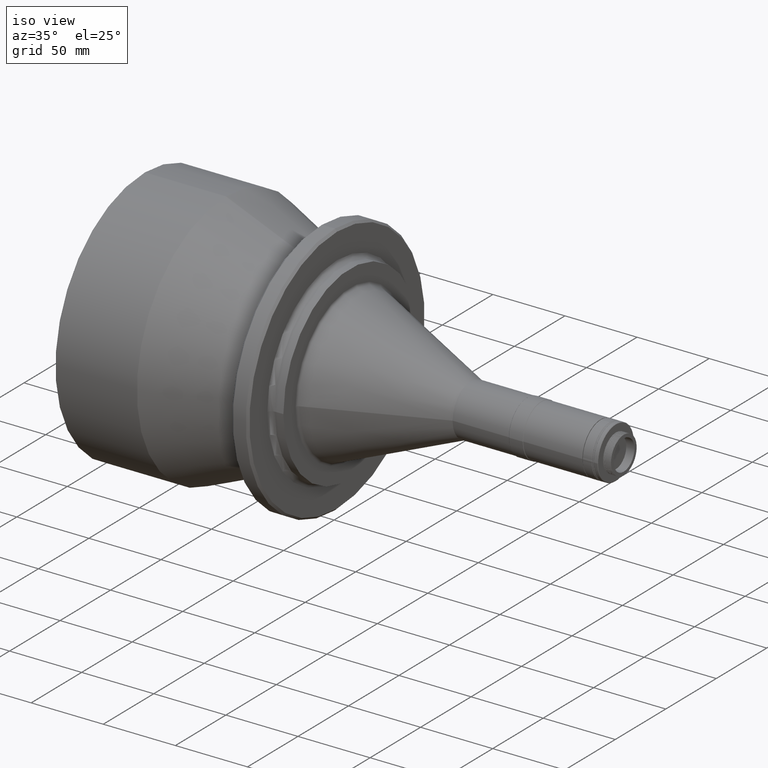
[diagram: clean part render]
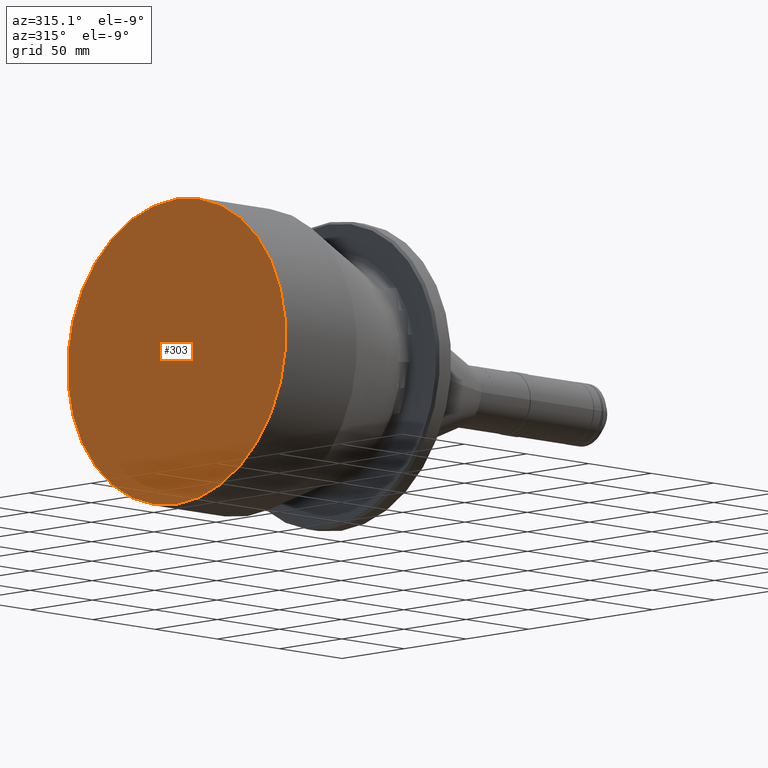
[diagram: tour spotlight — one face highlighted and labeled with its STEP entity id]
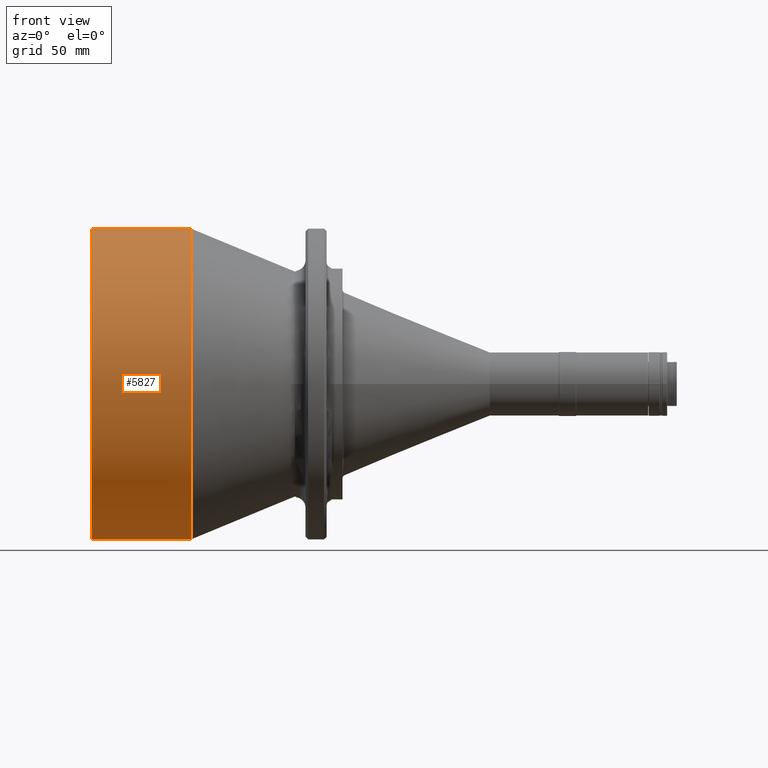
[diagram: tour spotlight — one face highlighted and labeled with its STEP entity id]
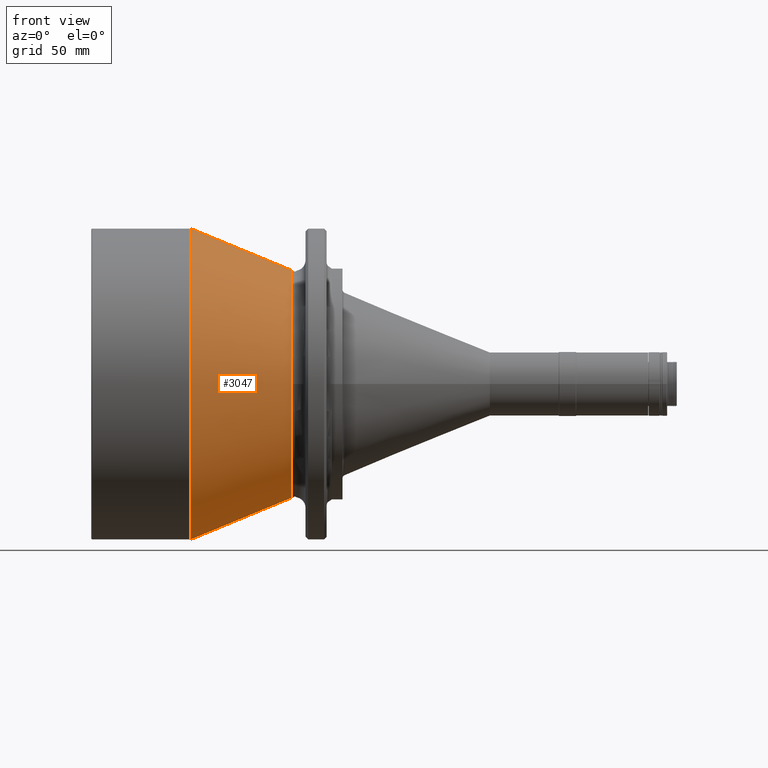
[diagram: tour spotlight — one face highlighted and labeled with its STEP entity id]
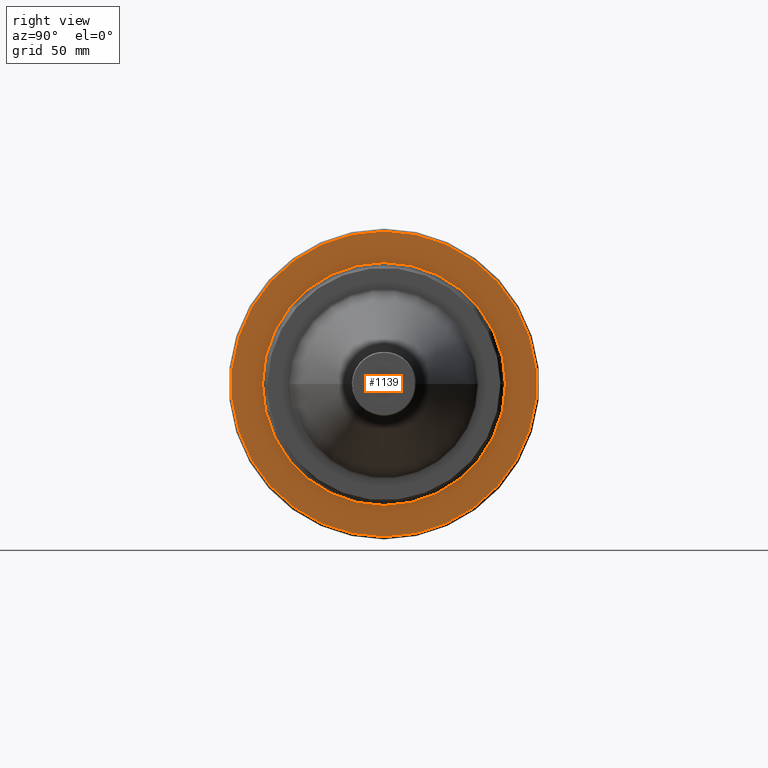
[diagram: tour spotlight — one face highlighted and labeled with its STEP entity id]
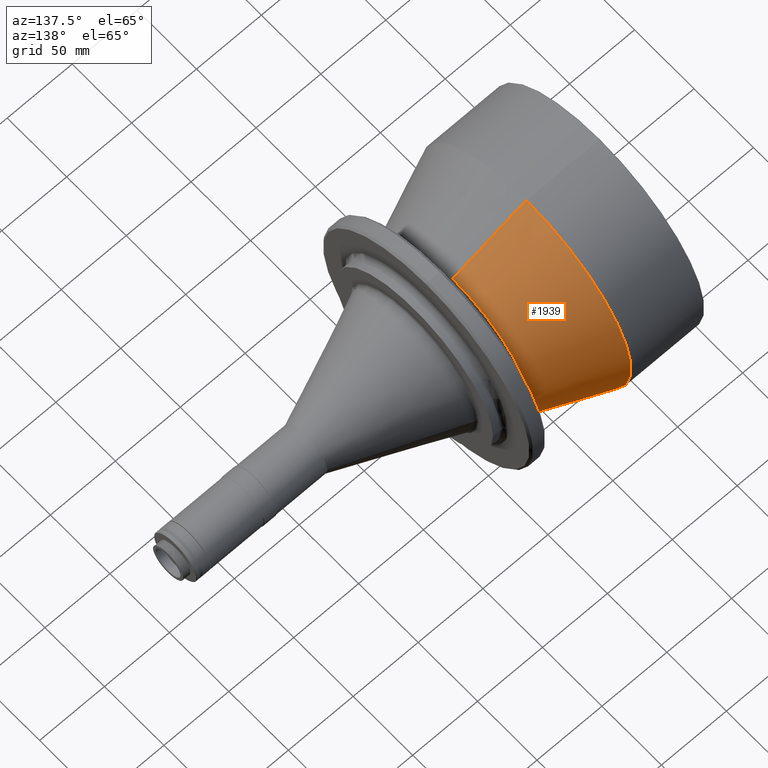
[diagram: tour spotlight — one face highlighted and labeled with its STEP entity id]
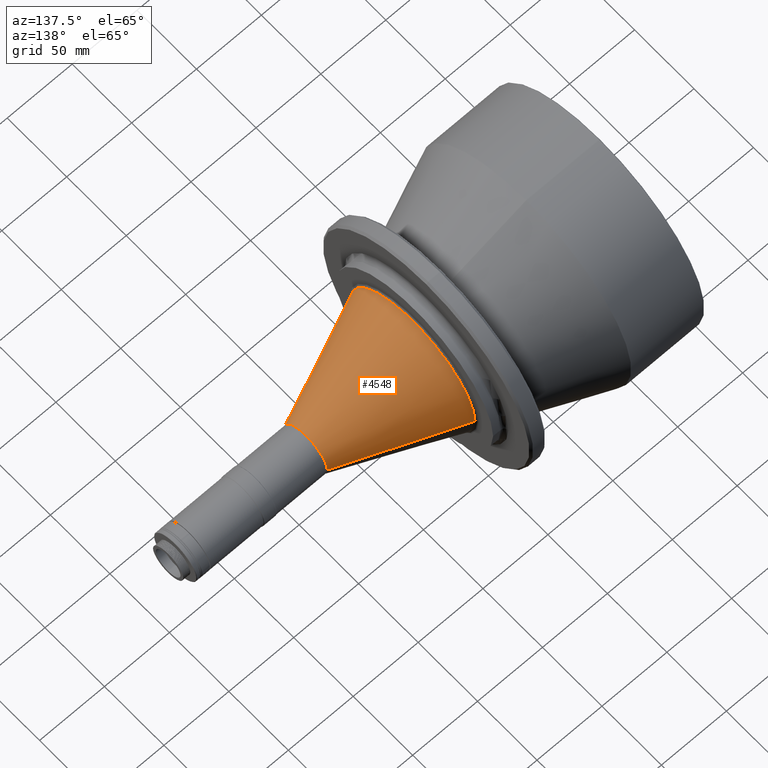
[diagram: tour spotlight — one face highlighted and labeled with its STEP entity id]
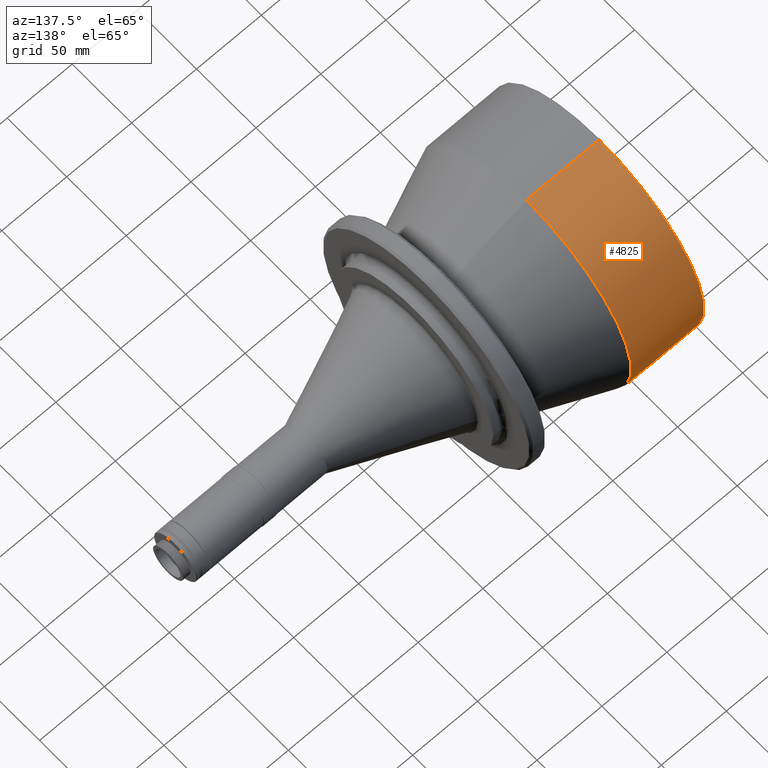
[diagram: tour spotlight — one face highlighted and labeled with its STEP entity id]
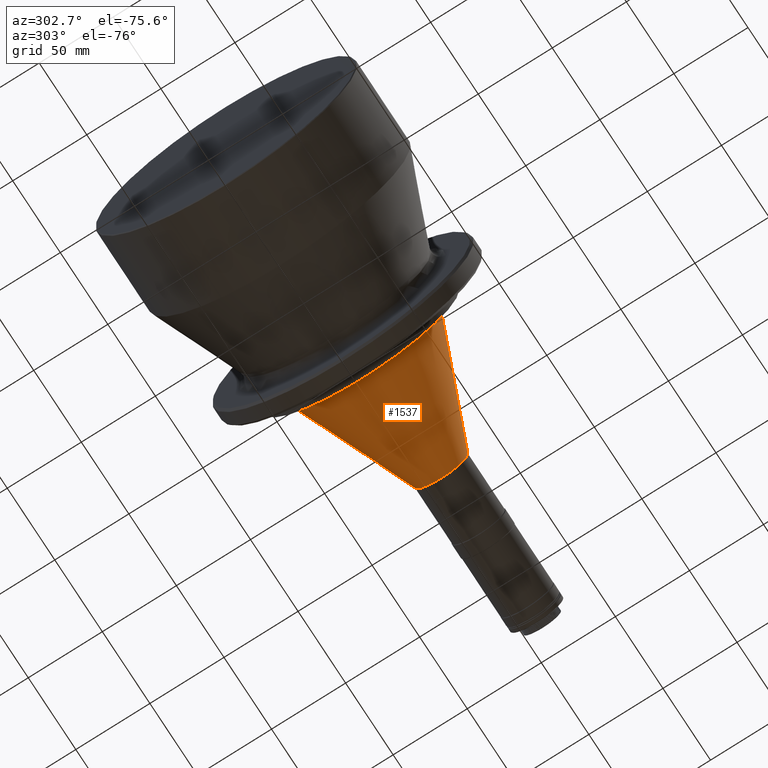
[diagram: tour spotlight — one face highlighted and labeled with its STEP entity id]
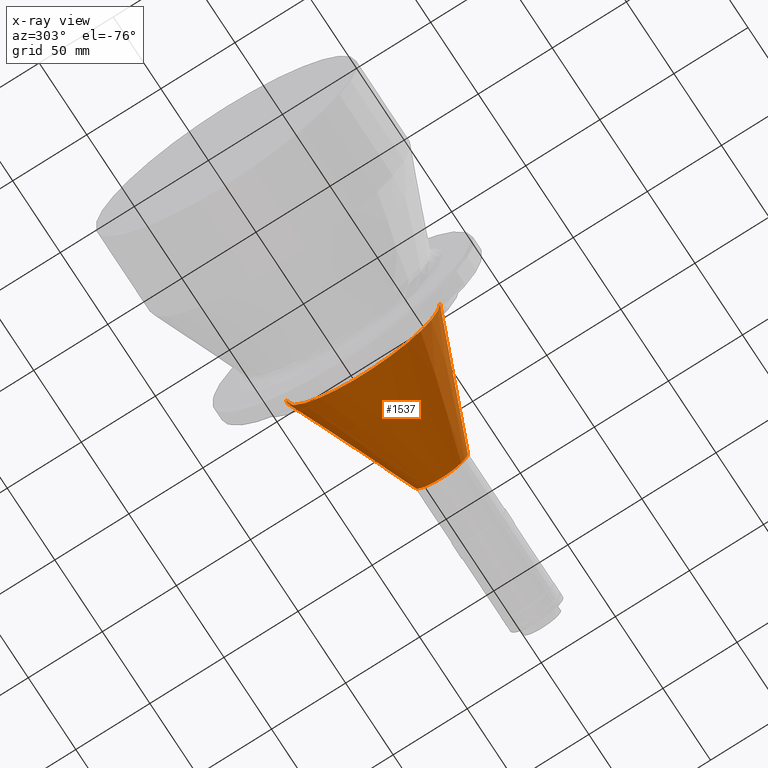
[diagram: x-ray of the same camera — body ghosted, this tour face saturated]
A machine part: a face-by-face anatomy tour. The part has 242 B-rep faces; the first image is the clean iso view, then the 8 largest visible faces are spotlighted one at a time (largest first), each with its STEP entity span.

Face 1 — auxiliary view, entity #303. In plain terms, the highlighted planar face has unit normal (-1, 0, 0).
Definition (entity closure, byte-faithful):
#59 = EDGE_LOOP ( 'NONE', ( #4142, #6047 ) ) ;
#303 = ADVANCED_FACE ( 'NONE', ( #1590 ), #4140, .T. ) ;
#370 = EDGE_CURVE ( 'NONE', #5584, #4749, #954, .T. ) ;
#700 = DIRECTION ( 'NONE',  ( -1.000000000000000000, 8.492394904561674800E-017, 0.0000000000000000000 ) ) ;
#954 = CIRCLE ( 'NONE', #1072, 87.74999999925017800 ) ;
#956 = DIRECTION ( 'NONE',  ( 0.0000000000000000000, 0.0000000000000000000, -1.000000000000000000 ) ) ;
#980 = EDGE_CURVE ( 'NONE', #4749, #5584, #1372, .T. ) ;
#1072 = AXIS2_PLACEMENT_3D ( 'NONE', #6606, #1474, #1450 ) ;
#1372 = CIRCLE ( 'NONE', #2708, 87.74999999925017800 ) ;
#1450 = DIRECTION ( 'NONE',  ( 0.0000000000000000000, 0.0000000000000000000, -1.000000000000000000 ) ) ;
#1474 = DIRECTION ( 'NONE',  ( 1.000000000000000000, 0.0000000000000000000, 0.0000000000000000000 ) ) ;
#1590 = FACE_OUTER_BOUND ( 'NONE', #59, .T. ) ;
#2708 = AXIS2_PLACEMENT_3D ( 'NONE', #3323, #6833, #956 ) ;
#3181 = CARTESIAN_POINT ( 'NONE',  ( 18.29891171507773300, 1.077689183242704600E-014, 19.52684612745017700 ) ) ;
#3323 = CARTESIAN_POINT ( 'NONE',  ( 18.29891171507773300, 0.0000000000000000000, -68.22315387180000800 ) ) ;
#4140 = PLANE ( 'NONE',  #7184 ) ;
#4142 = ORIENTED_EDGE ( 'NONE', *, *, #980, .F. ) ;
#4749 = VERTEX_POINT ( 'NONE', #6596 ) ;
#4761 = DIRECTION ( 'NONE',  ( -8.492394904561674800E-017, -1.000000000000000000, 0.0000000000000000000 ) ) ;
#4810 = CARTESIAN_POINT ( 'NONE',  ( 18.29891171507772900, 2.775557561562891400E-014, -68.22315000000000400 ) ) ;
#5584 = VERTEX_POINT ( 'NONE', #3181 ) ;
#6047 = ORIENTED_EDGE ( 'NONE', *, *, #370, .F. ) ;
#6596 = CARTESIAN_POINT ( 'NONE',  ( 18.29891171507773300, 0.0000000000000000000, -155.9731538710501900 ) ) ;
#6606 = CARTESIAN_POINT ( 'NONE',  ( 18.29891171507773300, 0.0000000000000000000, -68.22315387180000800 ) ) ;
#6833 = DIRECTION ( 'NONE',  ( 1.000000000000000000, 0.0000000000000000000, 0.0000000000000000000 ) ) ;
#7184 = AXIS2_PLACEMENT_3D ( 'NONE', #4810, #700, #4761 ) ;

Face 2 — front view, entity #5827. In plain terms, the highlighted cylindrical surface (partial cylindrical patch) has radius 88.25 mm, axis along (1, 0, 0).
Definition (entity closure, byte-faithful):
#4 = VERTEX_POINT ( 'NONE', #1933 ) ;
#11 = ORIENTED_EDGE ( 'NONE', *, *, #7429, .F. ) ;
#727 = AXIS2_PLACEMENT_3D ( 'NONE', #4299, #796, #3212 ) ;
#789 = LINE ( 'NONE', #1778, #5600 ) ;
#796 = DIRECTION ( 'NONE',  ( 1.000000000000000000, 0.0000000000000000000, 0.0000000000000000000 ) ) ;
#868 = CARTESIAN_POINT ( 'NONE',  ( 75.03891171589822300, 0.0000000000000000000, -68.22315387180000800 ) ) ;
#965 = DIRECTION ( 'NONE',  ( 1.000000000000000000, 0.0000000000000000000, 0.0000000000000000000 ) ) ;
#1287 = DIRECTION ( 'NONE',  ( 1.000000000000000000, 0.0000000000000000000, 0.0000000000000000000 ) ) ;
#1454 = DIRECTION ( 'NONE',  ( 1.000000000000000000, 0.0000000000000000000, 0.0000000000000000000 ) ) ;
#1488 = ORIENTED_EDGE ( 'NONE', *, *, #1660, .T. ) ;
#1660 = EDGE_CURVE ( 'NONE', #4, #2339, #7110, .T. ) ;
#1778 = CARTESIAN_POINT ( 'NONE',  ( 18.79891171590005100, 1.080750800248029100E-014, 20.02684612824000300 ) ) ;
#1933 = CARTESIAN_POINT ( 'NONE',  ( 18.79891171546457700, 0.0000000000000000000, -156.4731538714121400 ) ) ;
#2013 = CARTESIAN_POINT ( 'NONE',  ( 75.03891171589822300, 0.0000000000000000000, -156.4731538718400300 ) ) ;
#2041 = CARTESIAN_POINT ( 'NONE',  ( 75.03891171589822300, 1.080750800248029100E-014, 20.02684612824000300 ) ) ;
#2328 = ORIENTED_EDGE ( 'NONE', *, *, #3791, .F. ) ;
#2339 = VERTEX_POINT ( 'NONE', #2013 ) ;
#2395 = ORIENTED_EDGE ( 'NONE', *, *, #2758, .T. ) ;
#2445 = VERTEX_POINT ( 'NONE', #7424 ) ;
#2758 = EDGE_CURVE ( 'NONE', #2445, #4, #5355, .T. ) ;
#3210 = EDGE_LOOP ( 'NONE', ( #11, #2395, #1488, #2328 ) ) ;
#3212 = DIRECTION ( 'NONE',  ( 0.0000000000000000000, 0.0000000000000000000, -1.000000000000000000 ) ) ;
#3791 = EDGE_CURVE ( 'NONE', #5900, #2339, #6959, .T. ) ;
#4073 = CYLINDRICAL_SURFACE ( 'NONE', #7426, 88.25000000004001800 ) ;
#4132 = DIRECTION ( 'NONE',  ( 1.000000000000000000, 0.0000000000000000000, 0.0000000000000000000 ) ) ;
#4191 = AXIS2_PLACEMENT_3D ( 'NONE', #868, #965, #6744 ) ;
#4259 = FACE_OUTER_BOUND ( 'NONE', #3210, .T. ) ;
#4299 = CARTESIAN_POINT ( 'NONE',  ( 18.79891171546457700, 0.0000000000000000000, -68.22315387180000800 ) ) ;
#4427 = DIRECTION ( 'NONE',  ( 0.0000000000000000000, 0.0000000000000000000, -1.000000000000000000 ) ) ;
#4651 = VECTOR ( 'NONE', #1287, 1000.000000000000000 ) ;
#4852 = CARTESIAN_POINT ( 'NONE',  ( 18.79891171590005100, 0.0000000000000000000, -156.4731538718400300 ) ) ;
#5355 = CIRCLE ( 'NONE', #727, 88.24999999961214300 ) ;
#5600 = VECTOR ( 'NONE', #4132, 1000.000000000000000 ) ;
#5827 = ADVANCED_FACE ( 'NONE', ( #4259 ), #4073, .T. ) ;
#5900 = VERTEX_POINT ( 'NONE', #2041 ) ;
#6096 = CARTESIAN_POINT ( 'NONE',  ( 18.79891171590005100, 0.0000000000000000000, -68.22315387180000800 ) ) ;
#6744 = DIRECTION ( 'NONE',  ( 0.0000000000000000000, 0.0000000000000000000, 1.000000000000000000 ) ) ;
#6959 = CIRCLE ( 'NONE', #4191, 88.25000000004000400 ) ;
#7110 = LINE ( 'NONE', #4852, #4651 ) ;
#7424 = CARTESIAN_POINT ( 'NONE',  ( 18.79891171546457700, 1.080750800242789200E-014, 20.02684612781213500 ) ) ;
#7426 = AXIS2_PLACEMENT_3D ( 'NONE', #6096, #1454, #4427 ) ;
#7429 = EDGE_CURVE ( 'NONE', #2445, #5900, #789, .T. ) ;

Face 3 — front view, entity #3047. In plain terms, the highlighted conical surface has half-angle 22.483 deg.
Definition (entity closure, byte-faithful):
#18 = DIRECTION ( 'NONE',  ( -0.9239942192984365000, 4.683128184754137700E-017, -0.3824064365345758400 ) ) ;
#317 = DIRECTION ( 'NONE',  ( 0.0000000000000000000, 0.0000000000000000000, 1.000000000000000000 ) ) ;
#518 = ORIENTED_EDGE ( 'NONE', *, *, #2102, .T. ) ;
#535 = CARTESIAN_POINT ( 'NONE',  ( 75.03891171590559800, 1.080750800247999500E-014, -156.4731538718375800 ) ) ;
#593 = VERTEX_POINT ( 'NONE', #4030 ) ;
#650 = VECTOR ( 'NONE', #18, 1000.000000000000100 ) ;
#783 = DIRECTION ( 'NONE',  ( 1.000000000000000000, 0.0000000000000000000, 0.0000000000000000000 ) ) ;
#863 = CARTESIAN_POINT ( 'NONE',  ( 131.7444730966826400, 0.0000000000000000000, -3.441451839881843000 ) ) ;
#868 = CARTESIAN_POINT ( 'NONE',  ( 75.03891171589822300, 0.0000000000000000000, -68.22315387180000800 ) ) ;
#897 = VERTEX_POINT ( 'NONE', #863 ) ;
#965 = DIRECTION ( 'NONE',  ( 1.000000000000000000, 0.0000000000000000000, 0.0000000000000000000 ) ) ;
#1174 = CARTESIAN_POINT ( 'NONE',  ( 131.7444730966826400, 0.0000000000000000000, -68.22315387180000800 ) ) ;
#1274 = CIRCLE ( 'NONE', #2512, 64.78170203191815800 ) ;
#1524 = CONICAL_SURFACE ( 'NONE', #3939, 88.25000000003758800, 0.3923992821824769900 ) ;
#2013 = CARTESIAN_POINT ( 'NONE',  ( 75.03891171589822300, 0.0000000000000000000, -156.4731538718400300 ) ) ;
#2020 = EDGE_CURVE ( 'NONE', #4599, #2339, #3190, .T. ) ;
#2041 = CARTESIAN_POINT ( 'NONE',  ( 75.03891171589822300, 1.080750800248029100E-014, 20.02684612824000300 ) ) ;
#2102 = EDGE_CURVE ( 'NONE', #897, #5900, #5363, .T. ) ;
#2317 = ORIENTED_EDGE ( 'NONE', *, *, #2020, .F. ) ;
#2339 = VERTEX_POINT ( 'NONE', #2013 ) ;
#2366 = VECTOR ( 'NONE', #2985, 1000.000000000000100 ) ;
#2512 = AXIS2_PLACEMENT_3D ( 'NONE', #1174, #6367, #7030 ) ;
#2985 = DIRECTION ( 'NONE',  ( -0.9239942192984365000, 0.0000000000000000000, 0.3824064365345758400 ) ) ;
#3047 = ADVANCED_FACE ( 'NONE', ( #5347 ), #1524, .T. ) ;
#3190 = LINE ( 'NONE', #535, #650 ) ;
#3279 = CIRCLE ( 'NONE', #5213, 64.78170203191815800 ) ;
#3603 = ORIENTED_EDGE ( 'NONE', *, *, #4752, .F. ) ;
#3791 = EDGE_CURVE ( 'NONE', #5900, #2339, #6959, .T. ) ;
#3939 = AXIS2_PLACEMENT_3D ( 'NONE', #7094, #4750, #7141 ) ;
#4030 = CARTESIAN_POINT ( 'NONE',  ( 131.7444730966826400, -64.78170203191932300, -68.22314999999999000 ) ) ;
#4191 = AXIS2_PLACEMENT_3D ( 'NONE', #868, #965, #6744 ) ;
#4248 = ORIENTED_EDGE ( 'NONE', *, *, #4850, .F. ) ;
#4599 = VERTEX_POINT ( 'NONE', #7402 ) ;
#4750 = DIRECTION ( 'NONE',  ( -1.000000000000000000, -0.0000000000000000000, -0.0000000000000000000 ) ) ;
#4752 = EDGE_CURVE ( 'NONE', #897, #593, #3279, .T. ) ;
#4850 = EDGE_CURVE ( 'NONE', #593, #4599, #1274, .T. ) ;
#4865 = EDGE_LOOP ( 'NONE', ( #2317, #4248, #3603, #518, #5037 ) ) ;
#5037 = ORIENTED_EDGE ( 'NONE', *, *, #3791, .T. ) ;
#5213 = AXIS2_PLACEMENT_3D ( 'NONE', #7245, #783, #317 ) ;
#5347 = FACE_OUTER_BOUND ( 'NONE', #4865, .T. ) ;
#5363 = LINE ( 'NONE', #7114, #2366 ) ;
#5900 = VERTEX_POINT ( 'NONE', #2041 ) ;
#6367 = DIRECTION ( 'NONE',  ( 1.000000000000000000, 0.0000000000000000000, 0.0000000000000000000 ) ) ;
#6744 = DIRECTION ( 'NONE',  ( 0.0000000000000000000, 0.0000000000000000000, 1.000000000000000000 ) ) ;
#6959 = CIRCLE ( 'NONE', #4191, 88.25000000004000400 ) ;
#7030 = DIRECTION ( 'NONE',  ( 0.0000000000000000000, 0.0000000000000000000, 1.000000000000000000 ) ) ;
#7094 = CARTESIAN_POINT ( 'NONE',  ( 75.03891171590559800, 0.0000000000000000000, -68.22315387180000800 ) ) ;
#7114 = CARTESIAN_POINT ( 'NONE',  ( 75.03891171590559800, 0.0000000000000000000, 20.02684612823758700 ) ) ;
#7141 = DIRECTION ( 'NONE',  ( 0.0000000000000000000, 0.0000000000000000000, 1.000000000000000000 ) ) ;
#7245 = CARTESIAN_POINT ( 'NONE',  ( 131.7444730966826400, 0.0000000000000000000, -68.22315387180000800 ) ) ;
#7402 = CARTESIAN_POINT ( 'NONE',  ( 131.7444730966826400, 9.370489203075494800E-015, -133.0048559037181500 ) ) ;

Face 4 — right view, entity #1139. In plain terms, the highlighted planar face has unit normal (1, -0, -0).
Definition (entity closure, byte-faithful):
#190 = VERTEX_POINT ( 'NONE', #1197 ) ;
#256 = VERTEX_POINT ( 'NONE', #555 ) ;
#536 = DIRECTION ( 'NONE',  ( 1.000000000000000000, -0.0000000000000000000, -0.0000000000000000000 ) ) ;
#555 = CARTESIAN_POINT ( 'NONE',  ( 152.0389117163250600, 7.530002005659218300E-013, -154.9731538714589500 ) ) ;
#629 = CARTESIAN_POINT ( 'NONE',  ( 152.0389117163250600, 7.422845410734001900E-013, -68.22315387180000800 ) ) ;
#908 = CIRCLE ( 'NONE', #5573, 86.74999999965893900 ) ;
#1033 = CARTESIAN_POINT ( 'NONE',  ( 152.0389117163250600, 7.422845410734001900E-013, 18.52684612785893100 ) ) ;
#1076 = ORIENTED_EDGE ( 'NONE', *, *, #4255, .T. ) ;
#1139 = ADVANCED_FACE ( 'NONE', ( #7024, #5479 ), #2375, .T. ) ;
#1197 = CARTESIAN_POINT ( 'NONE',  ( 152.0389117158999900, 68.99999999978625500, -68.22315000000000400 ) ) ;
#1672 = ORIENTED_EDGE ( 'NONE', *, *, #1935, .F. ) ;
#1757 = CARTESIAN_POINT ( 'NONE',  ( 152.0389117161124900, 86.57336114977060500, -68.22315000000000400 ) ) ;
#1773 = DIRECTION ( 'NONE',  ( 1.000000000000000000, -0.0000000000000000000, -0.0000000000000000000 ) ) ;
#1935 = EDGE_CURVE ( 'NONE', #3353, #190, #3001, .T. ) ;
#2015 = AXIS2_PLACEMENT_3D ( 'NONE', #2132, #5069, #2725 ) ;
#2132 = CARTESIAN_POINT ( 'NONE',  ( 152.0389117158999900, 1.639784667019830300E-014, -68.22315000000000400 ) ) ;
#2375 = PLANE ( 'NONE',  #3380 ) ;
#2706 = EDGE_LOOP ( 'NONE', ( #3395, #1672 ) ) ;
#2725 = DIRECTION ( 'NONE',  ( 0.0000000000000000000, 1.000000000000000000, 0.0000000000000000000 ) ) ;
#2738 = EDGE_LOOP ( 'NONE', ( #1076, #5701 ) ) ;
#2839 = CARTESIAN_POINT ( 'NONE',  ( 152.0389117163250600, 7.422845410734001900E-013, -68.22315387180000800 ) ) ;
#3001 = CIRCLE ( 'NONE', #2015, 68.99999999999876400 ) ;
#3353 = VERTEX_POINT ( 'NONE', #6182 ) ;
#3380 = AXIS2_PLACEMENT_3D ( 'NONE', #1757, #4131, #6467 ) ;
#3395 = ORIENTED_EDGE ( 'NONE', *, *, #3876, .F. ) ;
#3876 = EDGE_CURVE ( 'NONE', #190, #3353, #5989, .T. ) ;
#4057 = DIRECTION ( 'NONE',  ( 0.0000000000000000000, 1.000000000000000000, 0.0000000000000000000 ) ) ;
#4091 = CARTESIAN_POINT ( 'NONE',  ( 152.0389117158999900, 1.639784667019830300E-014, -68.22315000000000400 ) ) ;
#4131 = DIRECTION ( 'NONE',  ( 1.000000000000000000, -8.492394904561674800E-017, -0.0000000000000000000 ) ) ;
#4255 = EDGE_CURVE ( 'NONE', #5982, #256, #908, .T. ) ;
#4461 = AXIS2_PLACEMENT_3D ( 'NONE', #629, #1773, #6390 ) ;
#4603 = DIRECTION ( 'NONE',  ( 1.000000000000000000, -8.492394904561674800E-017, -0.0000000000000000000 ) ) ;
#4838 = EDGE_CURVE ( 'NONE', #256, #5982, #7200, .T. ) ;
#5069 = DIRECTION ( 'NONE',  ( 1.000000000000000000, -8.492394904561674800E-017, -0.0000000000000000000 ) ) ;
#5070 = DIRECTION ( 'NONE',  ( 0.0000000000000000000, 0.0000000000000000000, 1.000000000000000000 ) ) ;
#5479 = FACE_OUTER_BOUND ( 'NONE', #2738, .T. ) ;
#5573 = AXIS2_PLACEMENT_3D ( 'NONE', #2839, #536, #5070 ) ;
#5701 = ORIENTED_EDGE ( 'NONE', *, *, #4838, .T. ) ;
#5982 = VERTEX_POINT ( 'NONE', #1033 ) ;
#5989 = CIRCLE ( 'NONE', #6290, 68.99999999999876400 ) ;
#6182 = CARTESIAN_POINT ( 'NONE',  ( 152.0389117158999900, -68.99999999978622600, -68.22314999999999000 ) ) ;
#6290 = AXIS2_PLACEMENT_3D ( 'NONE', #4091, #4603, #4057 ) ;
#6390 = DIRECTION ( 'NONE',  ( 0.0000000000000000000, 0.0000000000000000000, 1.000000000000000000 ) ) ;
#6467 = DIRECTION ( 'NONE',  ( 8.492394904561674800E-017, 1.000000000000000000, 0.0000000000000000000 ) ) ;
#7024 = FACE_BOUND ( 'NONE', #2706, .T. ) ;
#7200 = CIRCLE ( 'NONE', #4461, 86.74999999965893900 ) ;

Face 5 — auxiliary view, entity #1939. In plain terms, the highlighted conical surface has half-angle 22.483 deg.
Definition (entity closure, byte-faithful):
#9 = EDGE_LOOP ( 'NONE', ( #3536, #6347, #4618, #4657, #6261 ) ) ;
#18 = DIRECTION ( 'NONE',  ( -0.9239942192984365000, 4.683128184754137700E-017, -0.3824064365345758400 ) ) ;
#235 = DIRECTION ( 'NONE',  ( 1.000000000000000000, 0.0000000000000000000, 0.0000000000000000000 ) ) ;
#307 = CARTESIAN_POINT ( 'NONE',  ( 131.7444730966826400, 64.78170203191935200, -68.22315000000000400 ) ) ;
#335 = AXIS2_PLACEMENT_3D ( 'NONE', #6834, #6163, #5604 ) ;
#342 = DIRECTION ( 'NONE',  ( 0.0000000000000000000, 0.0000000000000000000, 1.000000000000000000 ) ) ;
#371 = VERTEX_POINT ( 'NONE', #307 ) ;
#535 = CARTESIAN_POINT ( 'NONE',  ( 75.03891171590559800, 1.080750800247999500E-014, -156.4731538718375800 ) ) ;
#650 = VECTOR ( 'NONE', #18, 1000.000000000000100 ) ;
#863 = CARTESIAN_POINT ( 'NONE',  ( 131.7444730966826400, 0.0000000000000000000, -3.441451839881843000 ) ) ;
#872 = EDGE_CURVE ( 'NONE', #4599, #371, #2204, .T. ) ;
#897 = VERTEX_POINT ( 'NONE', #863 ) ;
#929 = DIRECTION ( 'NONE',  ( 1.000000000000000000, 0.0000000000000000000, 0.0000000000000000000 ) ) ;
#1587 = DIRECTION ( 'NONE',  ( 0.0000000000000000000, 0.0000000000000000000, 1.000000000000000000 ) ) ;
#1939 = ADVANCED_FACE ( 'NONE', ( #6914 ), #6278, .T. ) ;
#2013 = CARTESIAN_POINT ( 'NONE',  ( 75.03891171589822300, 0.0000000000000000000, -156.4731538718400300 ) ) ;
#2020 = EDGE_CURVE ( 'NONE', #4599, #2339, #3190, .T. ) ;
#2041 = CARTESIAN_POINT ( 'NONE',  ( 75.03891171589822300, 1.080750800248029100E-014, 20.02684612824000300 ) ) ;
#2093 = CIRCLE ( 'NONE', #5033, 64.78170203191815800 ) ;
#2102 = EDGE_CURVE ( 'NONE', #897, #5900, #5363, .T. ) ;
#2203 = EDGE_CURVE ( 'NONE', #2339, #5900, #4909, .T. ) ;
#2204 = CIRCLE ( 'NONE', #5846, 64.78170203191815800 ) ;
#2339 = VERTEX_POINT ( 'NONE', #2013 ) ;
#2366 = VECTOR ( 'NONE', #2985, 1000.000000000000100 ) ;
#2985 = DIRECTION ( 'NONE',  ( -0.9239942192984365000, 0.0000000000000000000, 0.3824064365345758400 ) ) ;
#3190 = LINE ( 'NONE', #535, #650 ) ;
#3225 = CARTESIAN_POINT ( 'NONE',  ( 131.7444730966826400, 0.0000000000000000000, -68.22315387180000800 ) ) ;
#3536 = ORIENTED_EDGE ( 'NONE', *, *, #872, .F. ) ;
#4240 = EDGE_CURVE ( 'NONE', #371, #897, #2093, .T. ) ;
#4599 = VERTEX_POINT ( 'NONE', #7402 ) ;
#4618 = ORIENTED_EDGE ( 'NONE', *, *, #2203, .T. ) ;
#4657 = ORIENTED_EDGE ( 'NONE', *, *, #2102, .F. ) ;
#4909 = CIRCLE ( 'NONE', #6150, 88.25000000004000400 ) ;
#5033 = AXIS2_PLACEMENT_3D ( 'NONE', #5679, #7485, #1587 ) ;
#5363 = LINE ( 'NONE', #7114, #2366 ) ;
#5604 = DIRECTION ( 'NONE',  ( 0.0000000000000000000, 0.0000000000000000000, 1.000000000000000000 ) ) ;
#5679 = CARTESIAN_POINT ( 'NONE',  ( 131.7444730966826400, 0.0000000000000000000, -68.22315387180000800 ) ) ;
#5846 = AXIS2_PLACEMENT_3D ( 'NONE', #3225, #929, #342 ) ;
#5900 = VERTEX_POINT ( 'NONE', #2041 ) ;
#6150 = AXIS2_PLACEMENT_3D ( 'NONE', #6650, #235, #6589 ) ;
#6163 = DIRECTION ( 'NONE',  ( -1.000000000000000000, -0.0000000000000000000, -0.0000000000000000000 ) ) ;
#6261 = ORIENTED_EDGE ( 'NONE', *, *, #4240, .F. ) ;
#6278 = CONICAL_SURFACE ( 'NONE', #335, 88.25000000003758800, 0.3923992821824769900 ) ;
#6347 = ORIENTED_EDGE ( 'NONE', *, *, #2020, .T. ) ;
#6589 = DIRECTION ( 'NONE',  ( 0.0000000000000000000, 0.0000000000000000000, 1.000000000000000000 ) ) ;
#6650 = CARTESIAN_POINT ( 'NONE',  ( 75.03891171589822300, 0.0000000000000000000, -68.22315387180000800 ) ) ;
#6834 = CARTESIAN_POINT ( 'NONE',  ( 75.03891171590559800, 0.0000000000000000000, -68.22315387180000800 ) ) ;
#6914 = FACE_OUTER_BOUND ( 'NONE', #9, .T. ) ;
#7114 = CARTESIAN_POINT ( 'NONE',  ( 75.03891171590559800, 0.0000000000000000000, 20.02684612823758700 ) ) ;
#7402 = CARTESIAN_POINT ( 'NONE',  ( 131.7444730966826400, 9.370489203075494800E-015, -133.0048559037181500 ) ) ;
#7485 = DIRECTION ( 'NONE',  ( 1.000000000000000000, 0.0000000000000000000, 0.0000000000000000000 ) ) ;

Face 6 — auxiliary view, entity #4548. In plain terms, the highlighted conical surface has half-angle 22.483 deg.
Definition (entity closure, byte-faithful):
#145 = CARTESIAN_POINT ( 'NONE',  ( 162.2740988428731400, 52.14663879615672200, -68.22315000000000400 ) ) ;
#304 = CARTESIAN_POINT ( 'NONE',  ( 162.2740988428731400, 1.552863416015488000E-014, -68.22315000000000400 ) ) ;
#328 = ORIENTED_EDGE ( 'NONE', *, *, #2888, .F. ) ;
#749 = VECTOR ( 'NONE', #3196, 999.9999999999998900 ) ;
#859 = VERTEX_POINT ( 'NONE', #6498 ) ;
#873 = VERTEX_POINT ( 'NONE', #145 ) ;
#1257 = EDGE_CURVE ( 'NONE', #1636, #873, #6927, .T. ) ;
#1312 = EDGE_CURVE ( 'NONE', #859, #6019, #5568, .T. ) ;
#1588 = AXIS2_PLACEMENT_3D ( 'NONE', #2139, #2736, #6201 ) ;
#1636 = VERTEX_POINT ( 'NONE', #2466 ) ;
#2139 = CARTESIAN_POINT ( 'NONE',  ( 244.7813315715415300, 8.521794132010604500E-015, -68.22315000000000400 ) ) ;
#2184 = CIRCLE ( 'NONE', #6693, 52.14663879615670800 ) ;
#2390 = CARTESIAN_POINT ( 'NONE',  ( 244.7813315715415300, 8.521794132010604500E-015, -68.22315000000000400 ) ) ;
#2423 = ORIENTED_EDGE ( 'NONE', *, *, #1312, .F. ) ;
#2466 = CARTESIAN_POINT ( 'NONE',  ( 244.7813315715415300, 18.00000000000001100, -68.22315000000000400 ) ) ;
#2715 = CARTESIAN_POINT ( 'NONE',  ( 244.7813315715415300, -17.99999999999999600, -68.22315000000000400 ) ) ;
#2736 = DIRECTION ( 'NONE',  ( 1.000000000000000000, -8.492394904561674800E-017, -0.0000000000000000000 ) ) ;
#2834 = VECTOR ( 'NONE', #5674, 1000.000000000000200 ) ;
#2888 = EDGE_CURVE ( 'NONE', #1636, #859, #6360, .T. ) ;
#3196 = DIRECTION ( 'NONE',  ( -0.9239942192983445800, 0.3824064365347985600, 4.683128184756864200E-017 ) ) ;
#3218 = CARTESIAN_POINT ( 'NONE',  ( 244.7813315715415300, 18.00000000000001100, -68.22315000000000400 ) ) ;
#3585 = DIRECTION ( 'NONE',  ( -1.000000000000000000, 8.492394904561674800E-017, 0.0000000000000000000 ) ) ;
#3838 = CONICAL_SURFACE ( 'NONE', #5178, 18.00000000000000400, 0.3923992821827178600 ) ;
#3877 = ORIENTED_EDGE ( 'NONE', *, *, #1257, .T. ) ;
#4068 = DIRECTION ( 'NONE',  ( 0.0000000000000000000, -1.000000000000000000, 0.0000000000000000000 ) ) ;
#4253 = ORIENTED_EDGE ( 'NONE', *, *, #5527, .T. ) ;
#4548 = ADVANCED_FACE ( 'NONE', ( #7379 ), #3838, .T. ) ;
#4555 = CARTESIAN_POINT ( 'NONE',  ( 162.2740988428731400, -52.14663879615669400, -68.22315000000000400 ) ) ;
#5178 = AXIS2_PLACEMENT_3D ( 'NONE', #2390, #3585, #4068 ) ;
#5527 = EDGE_CURVE ( 'NONE', #873, #6019, #2184, .T. ) ;
#5568 = LINE ( 'NONE', #2715, #2834 ) ;
#5674 = DIRECTION ( 'NONE',  ( -0.9239942192983444700, -0.3824064365347983900, 0.0000000000000000000 ) ) ;
#6019 = VERTEX_POINT ( 'NONE', #4555 ) ;
#6201 = DIRECTION ( 'NONE',  ( 0.0000000000000000000, 1.000000000000000000, 0.0000000000000000000 ) ) ;
#6360 = CIRCLE ( 'NONE', #1588, 18.00000000000000400 ) ;
#6498 = CARTESIAN_POINT ( 'NONE',  ( 244.7813315715415300, -17.99999999999999600, -68.22315000000000400 ) ) ;
#6693 = AXIS2_PLACEMENT_3D ( 'NONE', #304, #7301, #6743 ) ;
#6726 = EDGE_LOOP ( 'NONE', ( #328, #3877, #4253, #2423 ) ) ;
#6743 = DIRECTION ( 'NONE',  ( 0.0000000000000000000, 1.000000000000000000, 0.0000000000000000000 ) ) ;
#6927 = LINE ( 'NONE', #3218, #749 ) ;
#7301 = DIRECTION ( 'NONE',  ( 1.000000000000000000, -8.492394904561674800E-017, -0.0000000000000000000 ) ) ;
#7379 = FACE_OUTER_BOUND ( 'NONE', #6726, .T. ) ;

Face 7 — auxiliary view, entity #4825. In plain terms, the highlighted cylindrical surface (partial cylindrical patch) has radius 88.25 mm, axis along (1, 0, 0).
Definition (entity closure, byte-faithful):
#4 = VERTEX_POINT ( 'NONE', #1933 ) ;
#235 = DIRECTION ( 'NONE',  ( 1.000000000000000000, 0.0000000000000000000, 0.0000000000000000000 ) ) ;
#415 = ORIENTED_EDGE ( 'NONE', *, *, #7429, .T. ) ;
#597 = CARTESIAN_POINT ( 'NONE',  ( 18.79891171546457700, 0.0000000000000000000, -68.22315387180000800 ) ) ;
#789 = LINE ( 'NONE', #1778, #5600 ) ;
#1118 = EDGE_LOOP ( 'NONE', ( #4875, #415, #3342, #3427 ) ) ;
#1223 = CARTESIAN_POINT ( 'NONE',  ( 18.79891171590005100, 0.0000000000000000000, -68.22315387180000800 ) ) ;
#1287 = DIRECTION ( 'NONE',  ( 1.000000000000000000, 0.0000000000000000000, 0.0000000000000000000 ) ) ;
#1660 = EDGE_CURVE ( 'NONE', #4, #2339, #7110, .T. ) ;
#1778 = CARTESIAN_POINT ( 'NONE',  ( 18.79891171590005100, 1.080750800248029100E-014, 20.02684612824000300 ) ) ;
#1933 = CARTESIAN_POINT ( 'NONE',  ( 18.79891171546457700, 0.0000000000000000000, -156.4731538714121400 ) ) ;
#2013 = CARTESIAN_POINT ( 'NONE',  ( 75.03891171589822300, 0.0000000000000000000, -156.4731538718400300 ) ) ;
#2041 = CARTESIAN_POINT ( 'NONE',  ( 75.03891171589822300, 1.080750800248029100E-014, 20.02684612824000300 ) ) ;
#2203 = EDGE_CURVE ( 'NONE', #2339, #5900, #4909, .T. ) ;
#2339 = VERTEX_POINT ( 'NONE', #2013 ) ;
#2361 = DIRECTION ( 'NONE',  ( 0.0000000000000000000, 0.0000000000000000000, -1.000000000000000000 ) ) ;
#2445 = VERTEX_POINT ( 'NONE', #7424 ) ;
#3021 = AXIS2_PLACEMENT_3D ( 'NONE', #597, #4032, #2361 ) ;
#3342 = ORIENTED_EDGE ( 'NONE', *, *, #2203, .F. ) ;
#3427 = ORIENTED_EDGE ( 'NONE', *, *, #1660, .F. ) ;
#3430 = AXIS2_PLACEMENT_3D ( 'NONE', #1223, #5843, #4644 ) ;
#3893 = EDGE_CURVE ( 'NONE', #4, #2445, #6088, .T. ) ;
#4002 = CYLINDRICAL_SURFACE ( 'NONE', #3430, 88.25000000004001800 ) ;
#4032 = DIRECTION ( 'NONE',  ( 1.000000000000000000, 0.0000000000000000000, 0.0000000000000000000 ) ) ;
#4132 = DIRECTION ( 'NONE',  ( 1.000000000000000000, 0.0000000000000000000, 0.0000000000000000000 ) ) ;
#4463 = FACE_OUTER_BOUND ( 'NONE', #1118, .T. ) ;
#4644 = DIRECTION ( 'NONE',  ( 0.0000000000000000000, 0.0000000000000000000, -1.000000000000000000 ) ) ;
#4651 = VECTOR ( 'NONE', #1287, 1000.000000000000000 ) ;
#4825 = ADVANCED_FACE ( 'NONE', ( #4463 ), #4002, .T. ) ;
#4852 = CARTESIAN_POINT ( 'NONE',  ( 18.79891171590005100, 0.0000000000000000000, -156.4731538718400300 ) ) ;
#4875 = ORIENTED_EDGE ( 'NONE', *, *, #3893, .T. ) ;
#4909 = CIRCLE ( 'NONE', #6150, 88.25000000004000400 ) ;
#5600 = VECTOR ( 'NONE', #4132, 1000.000000000000000 ) ;
#5843 = DIRECTION ( 'NONE',  ( 1.000000000000000000, 0.0000000000000000000, 0.0000000000000000000 ) ) ;
#5900 = VERTEX_POINT ( 'NONE', #2041 ) ;
#6088 = CIRCLE ( 'NONE', #3021, 88.24999999961214300 ) ;
#6150 = AXIS2_PLACEMENT_3D ( 'NONE', #6650, #235, #6589 ) ;
#6589 = DIRECTION ( 'NONE',  ( 0.0000000000000000000, 0.0000000000000000000, 1.000000000000000000 ) ) ;
#6650 = CARTESIAN_POINT ( 'NONE',  ( 75.03891171589822300, 0.0000000000000000000, -68.22315387180000800 ) ) ;
#7110 = LINE ( 'NONE', #4852, #4651 ) ;
#7424 = CARTESIAN_POINT ( 'NONE',  ( 18.79891171546457700, 1.080750800242789200E-014, 20.02684612781213500 ) ) ;
#7429 = EDGE_CURVE ( 'NONE', #2445, #5900, #789, .T. ) ;

Face 8 — auxiliary view, entity #1537. An x-ray twin of the same camera follows (body ghosted, this face saturated) — the face is partly hidden behind the body. In plain terms, the highlighted conical surface has half-angle 22.483 deg.
Definition (entity closure, byte-faithful):
#96 = DIRECTION ( 'NONE',  ( -1.000000000000000000, 8.492394904561674800E-017, 0.0000000000000000000 ) ) ;
#145 = CARTESIAN_POINT ( 'NONE',  ( 162.2740988428731400, 52.14663879615672200, -68.22315000000000400 ) ) ;
#162 = DIRECTION ( 'NONE',  ( 0.0000000000000000000, 1.000000000000000000, 0.0000000000000000000 ) ) ;
#343 = EDGE_LOOP ( 'NONE', ( #1260, #3986, #3308, #6257 ) ) ;
#749 = VECTOR ( 'NONE', #3196, 999.9999999999998900 ) ;
#859 = VERTEX_POINT ( 'NONE', #6498 ) ;
#873 = VERTEX_POINT ( 'NONE', #145 ) ;
#1257 = EDGE_CURVE ( 'NONE', #1636, #873, #6927, .T. ) ;
#1260 = ORIENTED_EDGE ( 'NONE', *, *, #1257, .F. ) ;
#1264 = CARTESIAN_POINT ( 'NONE',  ( 244.7813315715415300, 8.521794132010604500E-015, -68.22315000000000400 ) ) ;
#1312 = EDGE_CURVE ( 'NONE', #859, #6019, #5568, .T. ) ;
#1460 = CONICAL_SURFACE ( 'NONE', #5078, 18.00000000000000400, 0.3923992821827178600 ) ;
#1537 = ADVANCED_FACE ( 'NONE', ( #1818 ), #1460, .T. ) ;
#1636 = VERTEX_POINT ( 'NONE', #2466 ) ;
#1818 = FACE_OUTER_BOUND ( 'NONE', #343, .T. ) ;
#2466 = CARTESIAN_POINT ( 'NONE',  ( 244.7813315715415300, 18.00000000000001100, -68.22315000000000400 ) ) ;
#2470 = AXIS2_PLACEMENT_3D ( 'NONE', #5155, #3501, #2826 ) ;
#2524 = AXIS2_PLACEMENT_3D ( 'NONE', #3029, #3618, #162 ) ;
#2715 = CARTESIAN_POINT ( 'NONE',  ( 244.7813315715415300, -17.99999999999999600, -68.22315000000000400 ) ) ;
#2826 = DIRECTION ( 'NONE',  ( 0.0000000000000000000, 1.000000000000000000, 0.0000000000000000000 ) ) ;
#2834 = VECTOR ( 'NONE', #5674, 1000.000000000000200 ) ;
#3029 = CARTESIAN_POINT ( 'NONE',  ( 162.2740988428731400, 1.552863416015488000E-014, -68.22315000000000400 ) ) ;
#3196 = DIRECTION ( 'NONE',  ( -0.9239942192983445800, 0.3824064365347985600, 4.683128184756864200E-017 ) ) ;
#3218 = CARTESIAN_POINT ( 'NONE',  ( 244.7813315715415300, 18.00000000000001100, -68.22315000000000400 ) ) ;
#3308 = ORIENTED_EDGE ( 'NONE', *, *, #1312, .T. ) ;
#3501 = DIRECTION ( 'NONE',  ( 1.000000000000000000, -8.492394904561674800E-017, -0.0000000000000000000 ) ) ;
#3618 = DIRECTION ( 'NONE',  ( 1.000000000000000000, -8.492394904561674800E-017, -0.0000000000000000000 ) ) ;
#3986 = ORIENTED_EDGE ( 'NONE', *, *, #6084, .F. ) ;
#4234 = CIRCLE ( 'NONE', #2524, 52.14663879615670800 ) ;
#4555 = CARTESIAN_POINT ( 'NONE',  ( 162.2740988428731400, -52.14663879615669400, -68.22315000000000400 ) ) ;
#5078 = AXIS2_PLACEMENT_3D ( 'NONE', #1264, #96, #5248 ) ;
#5155 = CARTESIAN_POINT ( 'NONE',  ( 244.7813315715415300, 8.521794132010604500E-015, -68.22315000000000400 ) ) ;
#5248 = DIRECTION ( 'NONE',  ( 0.0000000000000000000, -1.000000000000000000, 0.0000000000000000000 ) ) ;
#5568 = LINE ( 'NONE', #2715, #2834 ) ;
#5674 = DIRECTION ( 'NONE',  ( -0.9239942192983444700, -0.3824064365347983900, 0.0000000000000000000 ) ) ;
#6019 = VERTEX_POINT ( 'NONE', #4555 ) ;
#6084 = EDGE_CURVE ( 'NONE', #859, #1636, #6441, .T. ) ;
#6257 = ORIENTED_EDGE ( 'NONE', *, *, #7450, .T. ) ;
#6441 = CIRCLE ( 'NONE', #2470, 18.00000000000000400 ) ;
#6498 = CARTESIAN_POINT ( 'NONE',  ( 244.7813315715415300, -17.99999999999999600, -68.22315000000000400 ) ) ;
#6927 = LINE ( 'NONE', #3218, #749 ) ;
#7450 = EDGE_CURVE ( 'NONE', #6019, #873, #4234, .T. ) ;